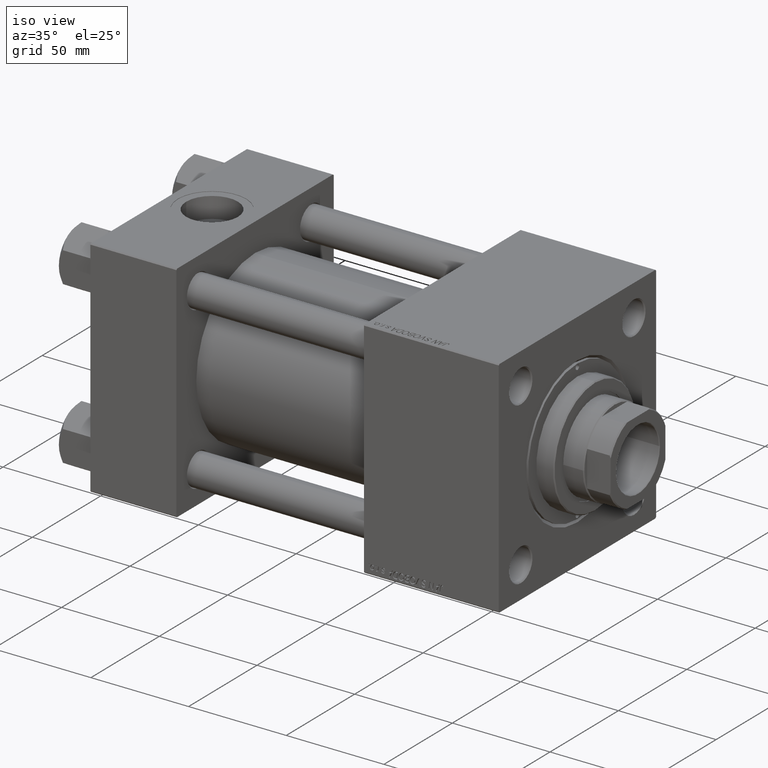
[diagram: clean part render]
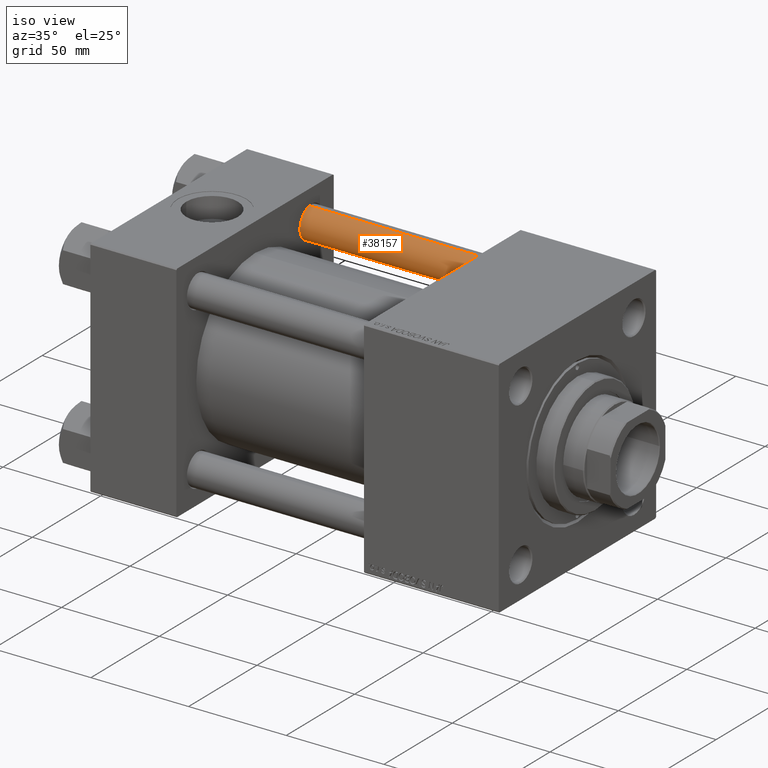
[diagram: same view with one face highlighted and labeled with its STEP entity id]
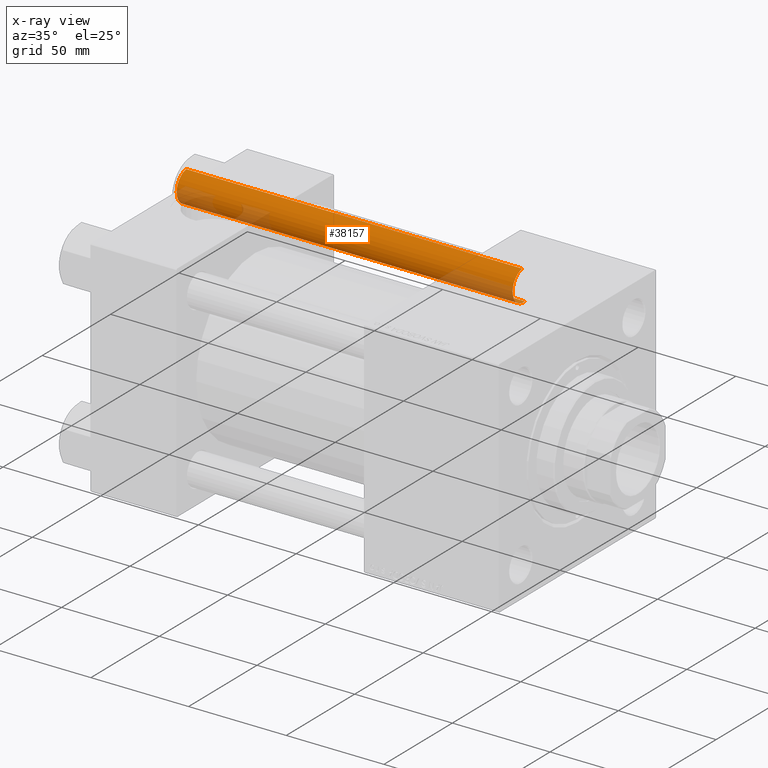
[diagram: x-ray of the same camera — body ghosted, the highlighted face saturated]
A machine part, iso view. The second image highlights one B-rep face of the part: STEP entity #38157.
The next image is the same camera in x-ray: the body ghosted, the highlighted face saturated — about 18% of this face is hidden behind the body in this view.
In plain terms, the highlighted cylindrical surface (edge-blend (fillet) strip) has radius 8 mm, axis along (-1, 0, 0).
Its self-contained STEP definition (entity closure, byte-faithful):
#404 = EDGE_CURVE ( 'NONE', #12069, #27235, #38922, .T. ) ;
#2193 = DIRECTION ( 'NONE',  ( 1.000000000000000000, 0.000000000000000000, 0.000000000000000000 ) ) ;
#4939 = CYLINDRICAL_SURFACE ( 'NONE', #19044, 8.000000000000000000 ) ;
#6379 = CARTESIAN_POINT ( 'NONE',  ( 8.000000000000000000, 9.797174393178825657E-16, 0.4999999999999449329 ) ) ;
#6612 = CIRCLE ( 'NONE', #45969, 8.000000000000000000 ) ;
#7587 = CARTESIAN_POINT ( 'NONE',  ( -8.000000000000000000, 0.000000000000000000, 0.4999999999999449329 ) ) ;
#8548 = AXIS2_PLACEMENT_3D ( 'NONE', #29390, #29646, #2193 ) ;
#8703 = CARTESIAN_POINT ( 'NONE',  ( -8.000000000000000000, 0.000000000000000000, 172.5000000000000000 ) ) ;
#9924 = LINE ( 'NONE', #33556, #28063 ) ;
#12069 = VERTEX_POINT ( 'NONE', #8703 ) ;
#13031 = EDGE_CURVE ( 'NONE', #27235, #35522, #6612, .T. ) ;
#15718 = VERTEX_POINT ( 'NONE', #27630 ) ;
#17573 = ORIENTED_EDGE ( 'NONE', *, *, #22654, .T. ) ;
#19044 = AXIS2_PLACEMENT_3D ( 'NONE', #44214, #21570, #29030 ) ;
#21570 = DIRECTION ( 'NONE',  ( -0.000000000000000000, -0.000000000000000000, -1.000000000000000000 ) ) ;
#22654 = EDGE_CURVE ( 'NONE', #15718, #12069, #48764, .T. ) ;
#22761 = CARTESIAN_POINT ( 'NONE',  ( -8.000000000000000000, 0.000000000000000000, 173.0000000000000000 ) ) ;
#23008 = DIRECTION ( 'NONE',  ( -0.000000000000000000, -0.000000000000000000, -1.000000000000000000 ) ) ;
#25168 = VECTOR ( 'NONE', #23008, 1000.000000000000000 ) ;
#27235 = VERTEX_POINT ( 'NONE', #7587 ) ;
#27630 = CARTESIAN_POINT ( 'NONE',  ( 8.000000000000000000, 9.797174393178825657E-16, 172.5000000000000000 ) ) ;
#28063 = VECTOR ( 'NONE', #49260, 1000.000000000000000 ) ;
#28472 = DIRECTION ( 'NONE',  ( -0.000000000000000000, -0.000000000000000000, 1.000000000000000000 ) ) ;
#29030 = DIRECTION ( 'NONE',  ( -1.000000000000000000, 0.000000000000000000, 0.000000000000000000 ) ) ;
#29390 = CARTESIAN_POINT ( 'NONE',  ( 0.000000000000000000, 0.000000000000000000, 172.5000000000000000 ) ) ;
#29646 = DIRECTION ( 'NONE',  ( 0.000000000000000000, 0.000000000000000000, -1.000000000000000000 ) ) ;
#31808 = DIRECTION ( 'NONE',  ( 1.000000000000000000, 0.000000000000000000, 0.000000000000000000 ) ) ;
#32765 = ORIENTED_EDGE ( 'NONE', *, *, #13031, .T. ) ;
#33556 = CARTESIAN_POINT ( 'NONE',  ( 8.000000000000000000, 9.797174393178825657E-16, 173.0000000000000000 ) ) ;
#34435 = EDGE_LOOP ( 'NONE', ( #45954, #17573, #50047, #32765 ) ) ;
#35522 = VERTEX_POINT ( 'NONE', #6379 ) ;
#36687 = CARTESIAN_POINT ( 'NONE',  ( 0.000000000000000000, 0.000000000000000000, 0.4999999999999449329 ) ) ;
#37344 = EDGE_CURVE ( 'NONE', #15718, #35522, #9924, .T. ) ;
#38157 = ADVANCED_FACE ( 'NONE', ( #43953 ), #4939, .T. ) ;
#38922 = LINE ( 'NONE', #22761, #25168 ) ;
#43953 = FACE_OUTER_BOUND ( 'NONE', #34435, .T. ) ;
#44214 = CARTESIAN_POINT ( 'NONE',  ( 0.000000000000000000, 0.000000000000000000, 173.0000000000000000 ) ) ;
#45954 = ORIENTED_EDGE ( 'NONE', *, *, #37344, .F. ) ;
#45969 = AXIS2_PLACEMENT_3D ( 'NONE', #36687, #28472, #31808 ) ;
#48764 = CIRCLE ( 'NONE', #8548, 8.000000000000000000 ) ;
#49260 = DIRECTION ( 'NONE',  ( -0.000000000000000000, -0.000000000000000000, -1.000000000000000000 ) ) ;
#50047 = ORIENTED_EDGE ( 'NONE', *, *, #404, .T. ) ;